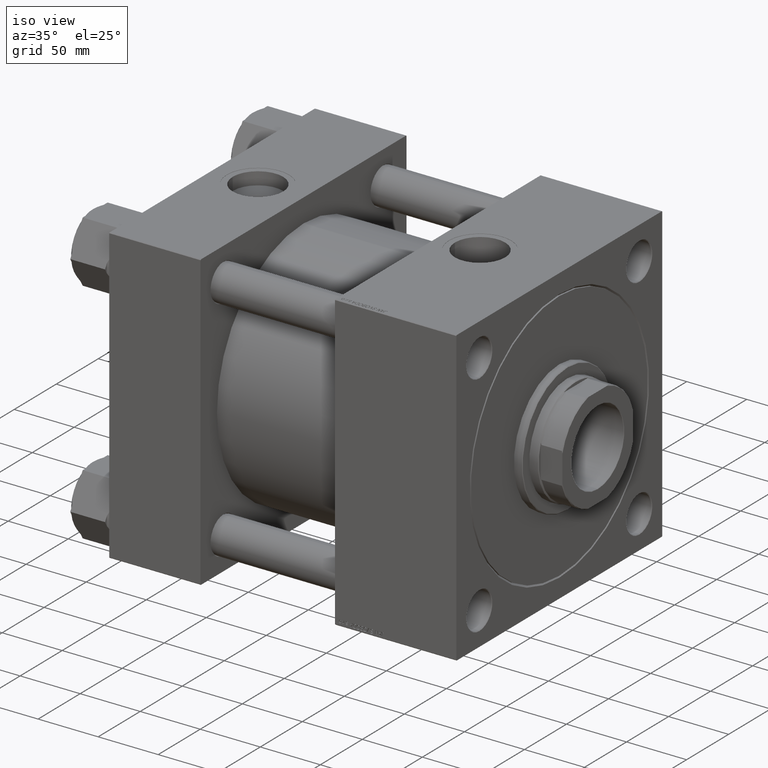
[diagram: clean part render]
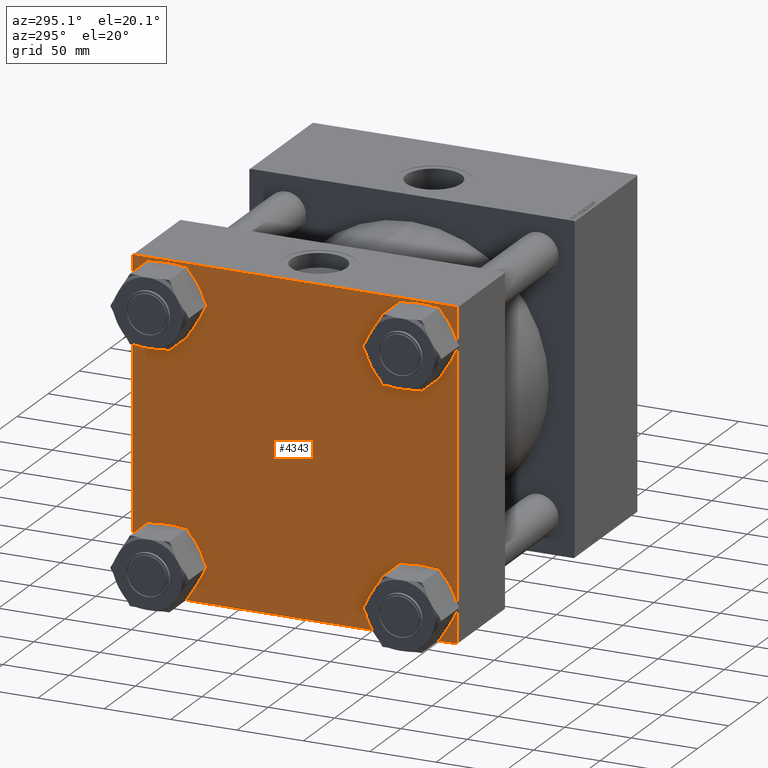
[diagram: tour spotlight — one face highlighted and labeled with its STEP entity id]
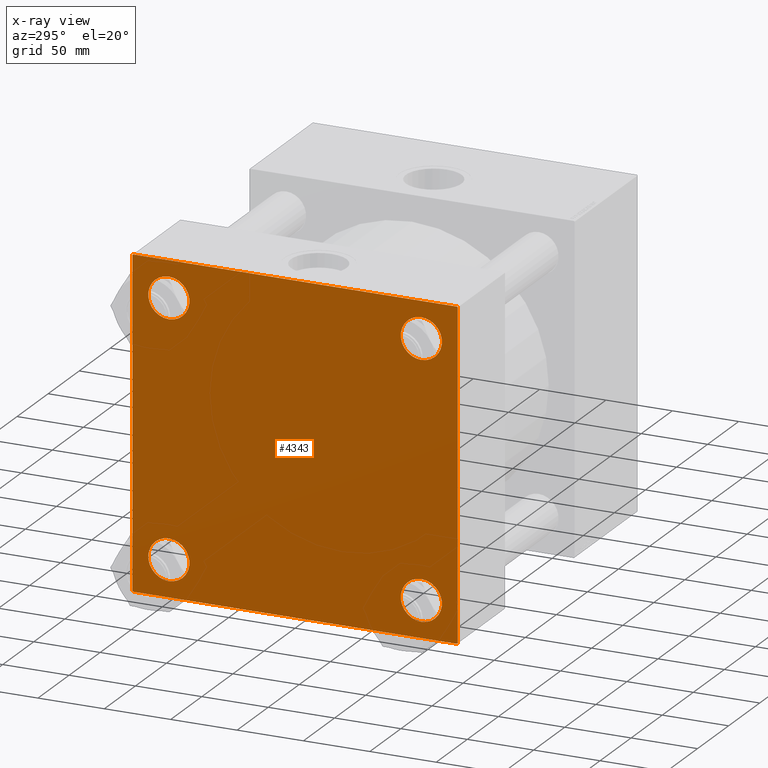
[diagram: x-ray of the same camera — body ghosted, this tour face saturated]
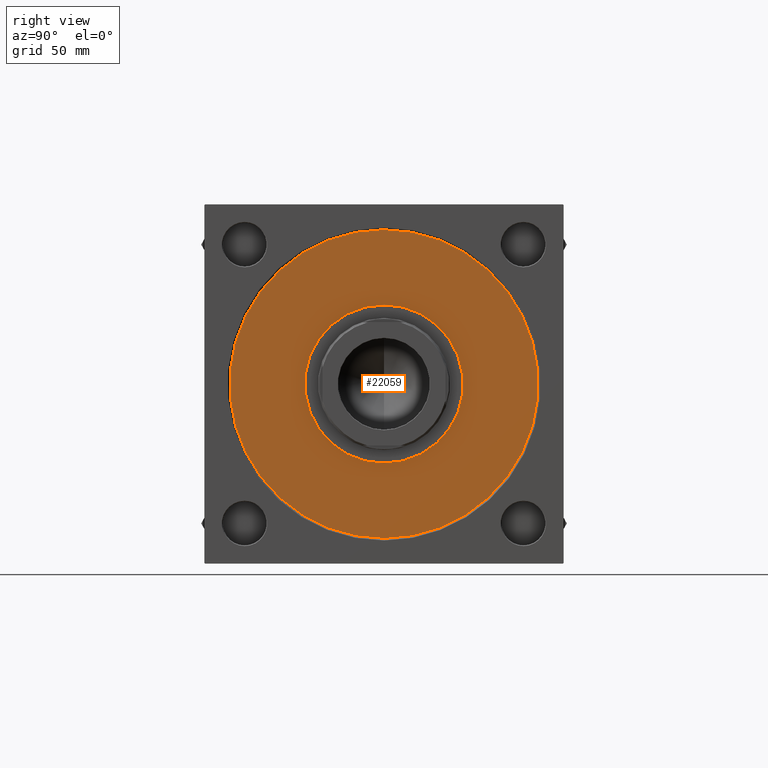
[diagram: tour spotlight — one face highlighted and labeled with its STEP entity id]
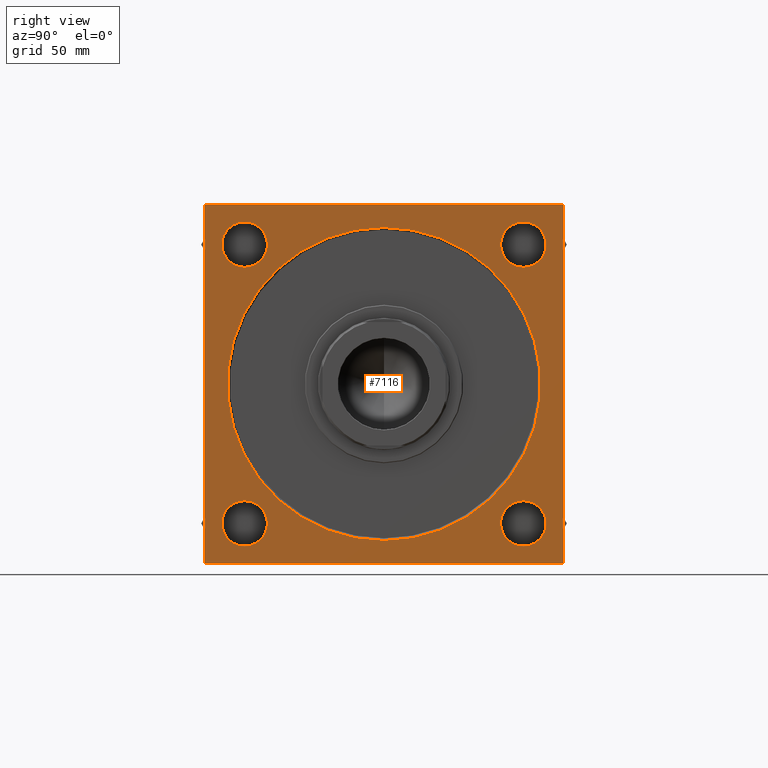
[diagram: tour spotlight — one face highlighted and labeled with its STEP entity id]
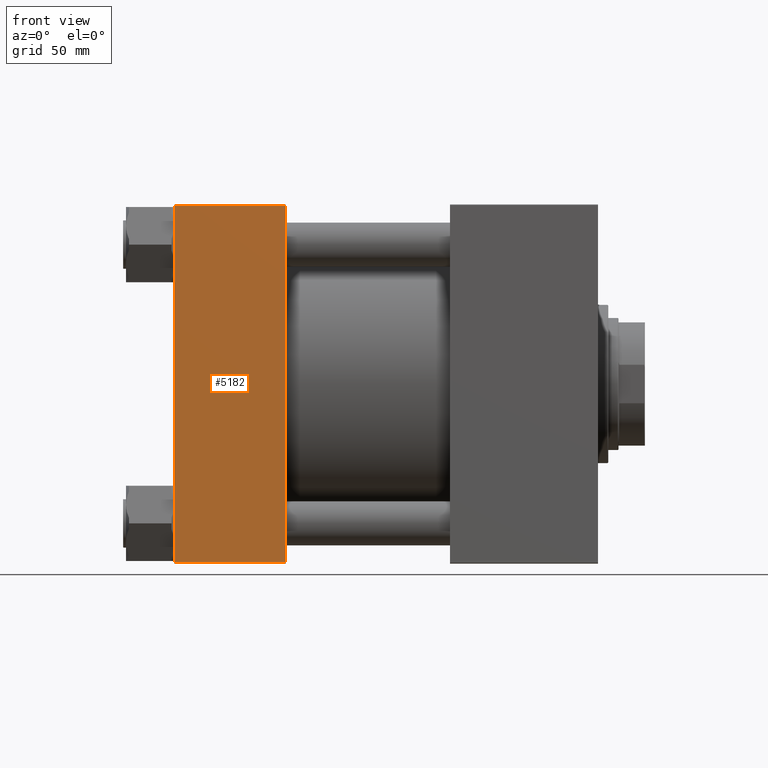
[diagram: tour spotlight — one face highlighted and labeled with its STEP entity id]
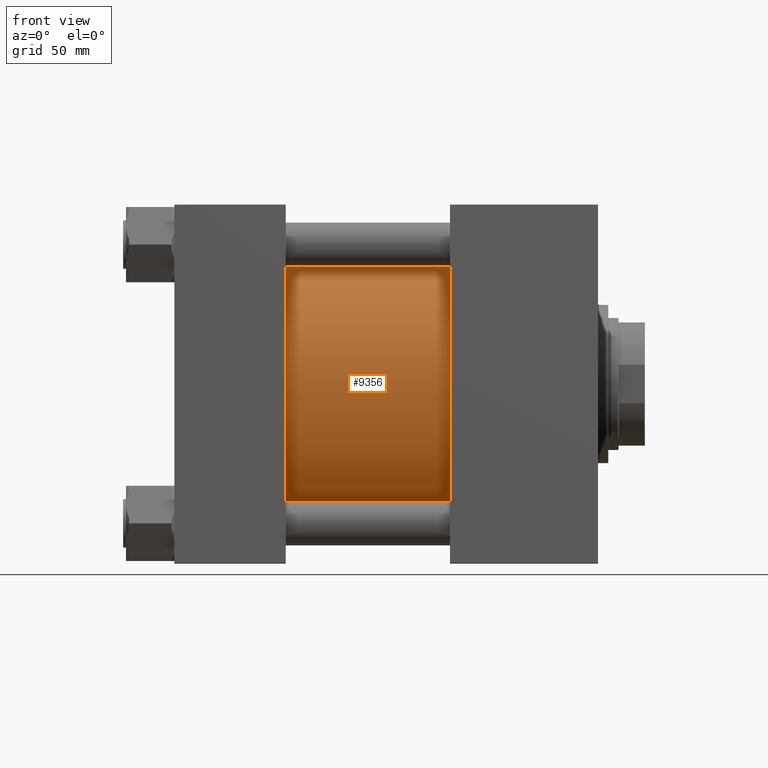
[diagram: tour spotlight — one face highlighted and labeled with its STEP entity id]
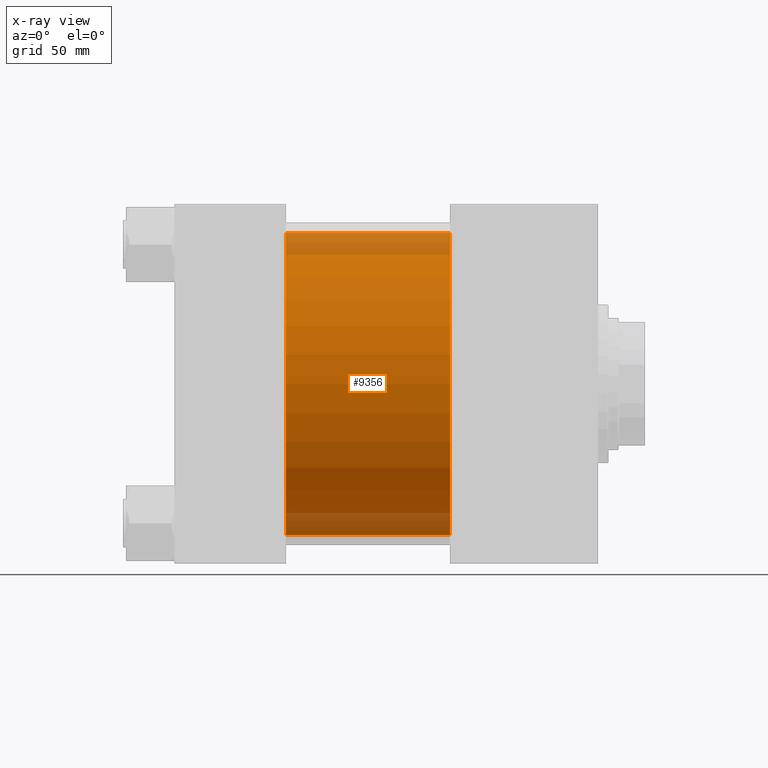
[diagram: x-ray of the same camera — body ghosted, this tour face saturated]
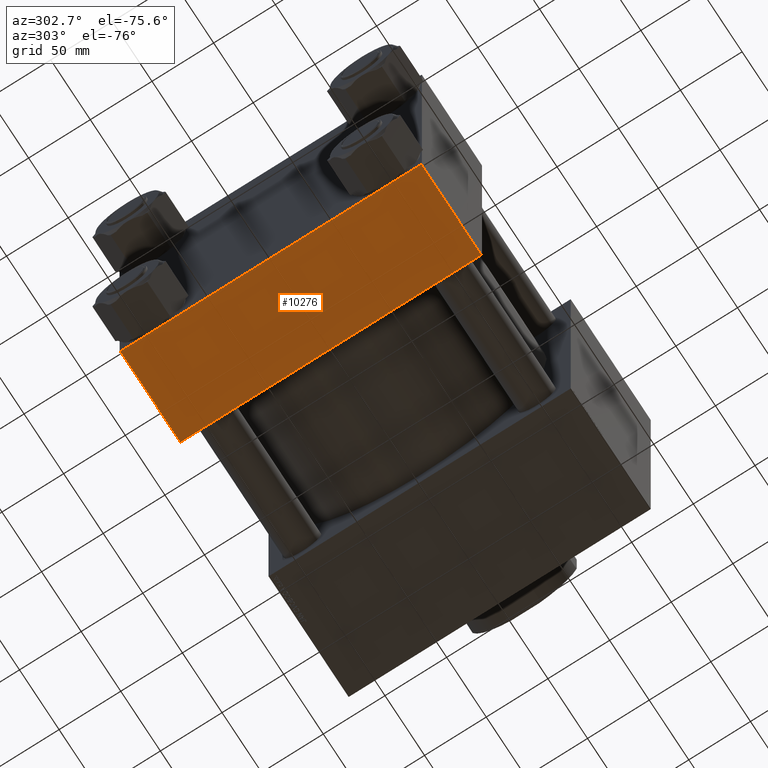
[diagram: tour spotlight — one face highlighted and labeled with its STEP entity id]
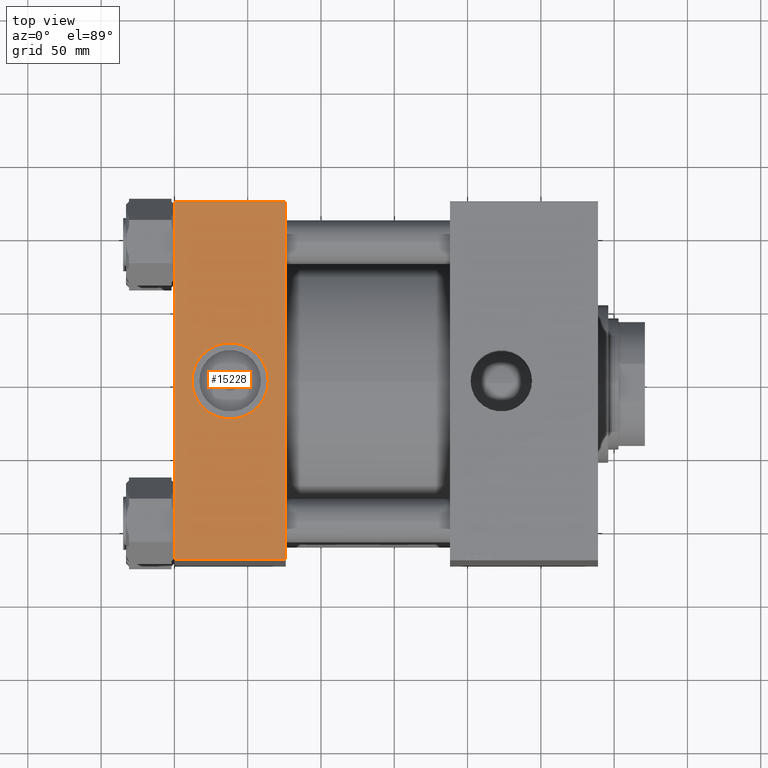
[diagram: tour spotlight — one face highlighted and labeled with its STEP entity id]
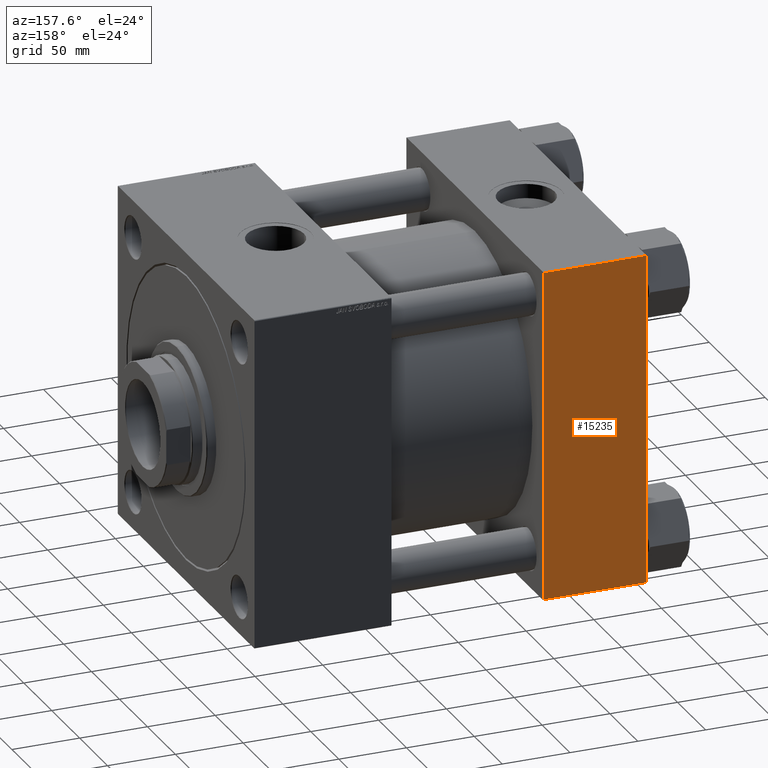
[diagram: tour spotlight — one face highlighted and labeled with its STEP entity id]
A machine part: a face-by-face anatomy tour. The part has 1196 B-rep faces; the first image is the clean iso view, then the 8 largest visible faces are spotlighted one at a time (largest first), each with its STEP entity span.

Face 1 — auxiliary view, entity #4343. An x-ray twin of the same camera follows (body ghosted, this face saturated) — the face is partly hidden behind the body. In plain terms, the highlighted planar face has unit normal (-1, 0, 0).
Definition (entity closure, byte-faithful):
#325 = VECTOR ( 'NONE', #20779, 1000.000000000000114 ) ;
#514 = DIRECTION ( 'NONE',  ( 1.000000000000000000, -0.000000000000000000, 0.000000000000000000 ) ) ;
#1582 = CIRCLE ( 'NONE', #17135, 15.50000000000001421 ) ;
#1644 = ORIENTED_EDGE ( 'NONE', *, *, #6718, .T. ) ;
#1882 = ORIENTED_EDGE ( 'NONE', *, *, #4992, .T. ) ;
#2014 = VECTOR ( 'NONE', #24680, 1000.000000000000000 ) ;
#2081 = AXIS2_PLACEMENT_3D ( 'NONE', #26482, #45982, #26997 ) ;
#2634 = DIRECTION ( 'NONE',  ( 0.000000000000000000, 0.000000000000000000, 1.000000000000000000 ) ) ;
#3004 = CARTESIAN_POINT ( 'NONE',  ( 0.000000000000000000, 121.9999999999999574, -122.4999999999999716 ) ) ;
#3505 = DIRECTION ( 'NONE',  ( 0.000000000000000000, 0.000000000000000000, 1.000000000000000000 ) ) ;
#3643 = CARTESIAN_POINT ( 'NONE',  ( 0.000000000000000000, -122.5000000000000000, 121.9999999999999858 ) ) ;
#3682 = VERTEX_POINT ( 'NONE', #14718 ) ;
#3717 = DIRECTION ( 'NONE',  ( 0.000000000000000000, 0.000000000000000000, 1.000000000000000000 ) ) ;
#4071 = VERTEX_POINT ( 'NONE', #7970 ) ;
#4132 = DIRECTION ( 'NONE',  ( -0.000000000000000000, -0.7071067811865081598, -0.7071067811865867636 ) ) ;
#4343 = ADVANCED_FACE ( 'NONE', ( #12018, #23807, #50499, #19972, #16142 ), #47405, .T. ) ;
#4718 = VERTEX_POINT ( 'NONE', #49041 ) ;
#4992 = EDGE_CURVE ( 'NONE', #50035, #4071, #40420, .T. ) ;
#5612 = EDGE_CURVE ( 'NONE', #11541, #40158, #50744, .T. ) ;
#6604 = VERTEX_POINT ( 'NONE', #27207 ) ;
#6718 = EDGE_CURVE ( 'NONE', #11473, #26241, #8986, .T. ) ;
#6823 = AXIS2_PLACEMENT_3D ( 'NONE', #20686, #13764, #48627 ) ;
#6956 = CARTESIAN_POINT ( 'NONE',  ( 0.000000000000000000, 95.09999999999999432, 110.5999999999999943 ) ) ;
#7216 = EDGE_CURVE ( 'NONE', #11541, #46745, #13153, .T. ) ;
#7886 = ORIENTED_EDGE ( 'NONE', *, *, #47049, .T. ) ;
#7970 = CARTESIAN_POINT ( 'NONE',  ( 0.000000000000000000, 95.09999999999999432, 79.59999999999996589 ) ) ;
#8193 = EDGE_LOOP ( 'NONE', ( #25125, #35672 ) ) ;
#8444 = DIRECTION ( 'NONE',  ( 0.000000000000000000, 0.000000000000000000, 1.000000000000000000 ) ) ;
#8504 = CIRCLE ( 'NONE', #17498, 15.50000000000001421 ) ;
#8986 = LINE ( 'NONE', #20539, #325 ) ;
#9953 = LINE ( 'NONE', #10202, #18712 ) ;
#10134 = CIRCLE ( 'NONE', #36340, 15.50000000000001421 ) ;
#10202 = CARTESIAN_POINT ( 'NONE',  ( 0.000000000000000000, -122.2499999999999574, -122.2499999999999574 ) ) ;
#10488 = CARTESIAN_POINT ( 'NONE',  ( 0.000000000000000000, 95.09999999999999432, -95.09999999999998010 ) ) ;
#10686 = DIRECTION ( 'NONE',  ( 0.000000000000000000, -1.000000000000000000, -1.699320956058913233E-16 ) ) ;
#11473 = VERTEX_POINT ( 'NONE', #29551 ) ;
#11481 = CARTESIAN_POINT ( 'NONE',  ( 0.000000000000000000, -95.09999999999996589, -110.6000000000000227 ) ) ;
#11523 = EDGE_CURVE ( 'NONE', #6604, #3682, #26663, .T. ) ;
#11541 = VERTEX_POINT ( 'NONE', #3643 ) ;
#12018 = FACE_BOUND ( 'NONE', #16253, .T. ) ;
#12351 = ORIENTED_EDGE ( 'NONE', *, *, #31103, .T. ) ;
#12552 = AXIS2_PLACEMENT_3D ( 'NONE', #16391, #32010, #23050 ) ;
#12772 = VERTEX_POINT ( 'NONE', #15664 ) ;
#12785 = CARTESIAN_POINT ( 'NONE',  ( 0.000000000000000000, -121.9999999999999858, 122.4999999999999858 ) ) ;
#13008 = AXIS2_PLACEMENT_3D ( 'NONE', #34987, #27293, #3717 ) ;
#13153 = LINE ( 'NONE', #20836, #2014 ) ;
#13724 = EDGE_CURVE ( 'NONE', #12772, #39217, #35639, .T. ) ;
#13764 = DIRECTION ( 'NONE',  ( 1.000000000000000000, -0.000000000000000000, 0.000000000000000000 ) ) ;
#14049 = CARTESIAN_POINT ( 'NONE',  ( 0.000000000000000000, 122.5000000000000142, 122.5000000000000284 ) ) ;
#14359 = DIRECTION ( 'NONE',  ( 0.000000000000000000, 0.000000000000000000, 1.000000000000000000 ) ) ;
#14718 = CARTESIAN_POINT ( 'NONE',  ( 0.000000000000000000, -95.09999999999996589, 110.6000000000000227 ) ) ;
#15335 = DIRECTION ( 'NONE',  ( 0.000000000000000000, -1.000000000000000000, -1.132880637372608740E-16 ) ) ;
#15492 = CARTESIAN_POINT ( 'NONE',  ( 0.000000000000000000, -121.9999999999999289, -122.5000000000000000 ) ) ;
#15664 = CARTESIAN_POINT ( 'NONE',  ( 0.000000000000000000, 95.09999999999999432, -79.59999999999996589 ) ) ;
#16142 = FACE_OUTER_BOUND ( 'NONE', #33712, .T. ) ;
#16188 = LINE ( 'NONE', #39235, #23477 ) ;
#16253 = EDGE_LOOP ( 'NONE', ( #21487, #46942 ) ) ;
#16391 = CARTESIAN_POINT ( 'NONE',  ( 0.000000000000000000, 0.000000000000000000, 0.000000000000000000 ) ) ;
#16669 = EDGE_CURVE ( 'NONE', #16913, #25498, #16188, .T. ) ;
#16913 = VERTEX_POINT ( 'NONE', #45343 ) ;
#17135 = AXIS2_PLACEMENT_3D ( 'NONE', #31862, #39030, #32105 ) ;
#17498 = AXIS2_PLACEMENT_3D ( 'NONE', #10488, #34076, #14359 ) ;
#18079 = ORIENTED_EDGE ( 'NONE', *, *, #21527, .T. ) ;
#18712 = VECTOR ( 'NONE', #45591, 1000.000000000000114 ) ;
#18756 = CARTESIAN_POINT ( 'NONE',  ( 0.000000000000000000, 95.09999999999999432, -110.5999999999999943 ) ) ;
#19209 = AXIS2_PLACEMENT_3D ( 'NONE', #25452, #29042, #2634 ) ;
#19972 = FACE_BOUND ( 'NONE', #39400, .T. ) ;
#20400 = EDGE_CURVE ( 'NONE', #25498, #49776, #34032, .T. ) ;
#20539 = CARTESIAN_POINT ( 'NONE',  ( 0.000000000000000000, 122.2500000000000000, 122.2500000000000000 ) ) ;
#20686 = CARTESIAN_POINT ( 'NONE',  ( 0.000000000000000000, 95.09999999999999432, 95.09999999999998010 ) ) ;
#20779 = DIRECTION ( 'NONE',  ( 0.000000000000000000, 0.7071067811865474617, -0.7071067811865474617 ) ) ;
#20836 = CARTESIAN_POINT ( 'NONE',  ( 0.000000000000000000, -122.5000000000000000, 122.4999999999999858 ) ) ;
#21487 = ORIENTED_EDGE ( 'NONE', *, *, #47953, .T. ) ;
#21527 = EDGE_CURVE ( 'NONE', #41780, #4718, #41663, .T. ) ;
#22733 = DIRECTION ( 'NONE',  ( 1.000000000000000000, -0.000000000000000000, 0.000000000000000000 ) ) ;
#23050 = DIRECTION ( 'NONE',  ( -0.000000000000000000, 0.000000000000000000, 1.000000000000000000 ) ) ;
#23457 = EDGE_CURVE ( 'NONE', #26241, #16913, #39652, .T. ) ;
#23477 = VECTOR ( 'NONE', #4132, 1000.000000000000000 ) ;
#23807 = FACE_BOUND ( 'NONE', #45903, .T. ) ;
#23959 = EDGE_CURVE ( 'NONE', #4071, #50035, #35189, .T. ) ;
#24170 = ORIENTED_EDGE ( 'NONE', *, *, #20400, .T. ) ;
#24208 = CARTESIAN_POINT ( 'NONE',  ( 0.000000000000000000, -122.5000000000000000, -121.9999999999999289 ) ) ;
#24454 = ORIENTED_EDGE ( 'NONE', *, *, #5612, .T. ) ;
#24680 = DIRECTION ( 'NONE',  ( 0.000000000000000000, 0.000000000000000000, -1.000000000000000000 ) ) ;
#25125 = ORIENTED_EDGE ( 'NONE', *, *, #13724, .T. ) ;
#25391 = ORIENTED_EDGE ( 'NONE', *, *, #16669, .T. ) ;
#25452 = CARTESIAN_POINT ( 'NONE',  ( 0.000000000000000000, -95.09999999999996589, 95.10000000000000853 ) ) ;
#25498 = VERTEX_POINT ( 'NONE', #3004 ) ;
#25513 = EDGE_CURVE ( 'NONE', #11473, #40158, #29909, .T. ) ;
#26241 = VERTEX_POINT ( 'NONE', #34914 ) ;
#26482 = CARTESIAN_POINT ( 'NONE',  ( 0.000000000000000000, 95.09999999999999432, -95.09999999999998010 ) ) ;
#26663 = CIRCLE ( 'NONE', #19209, 15.50000000000001421 ) ;
#26985 = AXIS2_PLACEMENT_3D ( 'NONE', #47435, #514, #8444 ) ;
#26997 = DIRECTION ( 'NONE',  ( 0.000000000000000000, 0.000000000000000000, 1.000000000000000000 ) ) ;
#27207 = CARTESIAN_POINT ( 'NONE',  ( 0.000000000000000000, -95.09999999999996589, 79.59999999999999432 ) ) ;
#27293 = DIRECTION ( 'NONE',  ( 1.000000000000000000, -0.000000000000000000, 0.000000000000000000 ) ) ;
#29042 = DIRECTION ( 'NONE',  ( 1.000000000000000000, -0.000000000000000000, 0.000000000000000000 ) ) ;
#29321 = VECTOR ( 'NONE', #15335, 1000.000000000000000 ) ;
#29551 = CARTESIAN_POINT ( 'NONE',  ( 0.000000000000000000, 121.9999999999999574, 122.5000000000000284 ) ) ;
#29909 = LINE ( 'NONE', #14049, #36756 ) ;
#30849 = EDGE_CURVE ( 'NONE', #39217, #12772, #8504, .T. ) ;
#31103 = EDGE_CURVE ( 'NONE', #4718, #41780, #10134, .T. ) ;
#31862 = CARTESIAN_POINT ( 'NONE',  ( 0.000000000000000000, -95.09999999999996589, 95.10000000000000853 ) ) ;
#32010 = DIRECTION ( 'NONE',  ( -1.000000000000000000, 0.000000000000000000, -0.000000000000000000 ) ) ;
#32105 = DIRECTION ( 'NONE',  ( 0.000000000000000000, 0.000000000000000000, 1.000000000000000000 ) ) ;
#33712 = EDGE_LOOP ( 'NONE', ( #38267, #25391, #24170, #7886, #36233, #24454, #35934, #1644 ) ) ;
#34032 = LINE ( 'NONE', #34791, #29321 ) ;
#34076 = DIRECTION ( 'NONE',  ( 1.000000000000000000, -0.000000000000000000, 0.000000000000000000 ) ) ;
#34791 = CARTESIAN_POINT ( 'NONE',  ( 0.000000000000000000, 122.5000000000000142, -122.4999999999999716 ) ) ;
#34914 = CARTESIAN_POINT ( 'NONE',  ( 0.000000000000000000, 122.5000000000000142, 121.9999999999999716 ) ) ;
#34987 = CARTESIAN_POINT ( 'NONE',  ( 0.000000000000000000, -95.09999999999996589, -95.10000000000000853 ) ) ;
#35189 = CIRCLE ( 'NONE', #26985, 15.50000000000001421 ) ;
#35639 = CIRCLE ( 'NONE', #2081, 15.50000000000001421 ) ;
#35672 = ORIENTED_EDGE ( 'NONE', *, *, #30849, .T. ) ;
#35934 = ORIENTED_EDGE ( 'NONE', *, *, #25513, .F. ) ;
#36061 = CARTESIAN_POINT ( 'NONE',  ( 0.000000000000000000, 122.5000000000000142, 122.5000000000000284 ) ) ;
#36233 = ORIENTED_EDGE ( 'NONE', *, *, #7216, .F. ) ;
#36340 = AXIS2_PLACEMENT_3D ( 'NONE', #46065, #22733, #3505 ) ;
#36756 = VECTOR ( 'NONE', #10686, 1000.000000000000000 ) ;
#38267 = ORIENTED_EDGE ( 'NONE', *, *, #23457, .T. ) ;
#39030 = DIRECTION ( 'NONE',  ( 1.000000000000000000, -0.000000000000000000, 0.000000000000000000 ) ) ;
#39217 = VERTEX_POINT ( 'NONE', #18756 ) ;
#39235 = CARTESIAN_POINT ( 'NONE',  ( 0.000000000000000000, 122.2500000000067217, -122.2499999999931646 ) ) ;
#39400 = EDGE_LOOP ( 'NONE', ( #1882, #47303 ) ) ;
#39652 = LINE ( 'NONE', #36061, #40059 ) ;
#40059 = VECTOR ( 'NONE', #47607, 1000.000000000000000 ) ;
#40158 = VERTEX_POINT ( 'NONE', #12785 ) ;
#40420 = CIRCLE ( 'NONE', #6823, 15.50000000000001421 ) ;
#41663 = CIRCLE ( 'NONE', #13008, 15.50000000000001421 ) ;
#41780 = VERTEX_POINT ( 'NONE', #11481 ) ;
#45343 = CARTESIAN_POINT ( 'NONE',  ( 0.000000000000000000, 122.5000000000000142, -121.9999999999998579 ) ) ;
#45591 = DIRECTION ( 'NONE',  ( 0.000000000000000000, -0.7071067811865474617, 0.7071067811865474617 ) ) ;
#45903 = EDGE_LOOP ( 'NONE', ( #12351, #18079 ) ) ;
#45982 = DIRECTION ( 'NONE',  ( 1.000000000000000000, -0.000000000000000000, 0.000000000000000000 ) ) ;
#46065 = CARTESIAN_POINT ( 'NONE',  ( 0.000000000000000000, -95.09999999999996589, -95.10000000000000853 ) ) ;
#46745 = VERTEX_POINT ( 'NONE', #24208 ) ;
#46882 = CARTESIAN_POINT ( 'NONE',  ( -0.000000000000000000, -122.2499999999982947, 122.2500000000016911 ) ) ;
#46942 = ORIENTED_EDGE ( 'NONE', *, *, #11523, .T. ) ;
#47049 = EDGE_CURVE ( 'NONE', #49776, #46745, #9953, .T. ) ;
#47303 = ORIENTED_EDGE ( 'NONE', *, *, #23959, .T. ) ;
#47393 = DIRECTION ( 'NONE',  ( -0.000000000000000000, 0.7071067811865574537, 0.7071067811865376918 ) ) ;
#47405 = PLANE ( 'NONE',  #12552 ) ;
#47435 = CARTESIAN_POINT ( 'NONE',  ( 0.000000000000000000, 95.09999999999999432, 95.09999999999998010 ) ) ;
#47607 = DIRECTION ( 'NONE',  ( 0.000000000000000000, 0.000000000000000000, -1.000000000000000000 ) ) ;
#47953 = EDGE_CURVE ( 'NONE', #3682, #6604, #1582, .T. ) ;
#48627 = DIRECTION ( 'NONE',  ( 0.000000000000000000, 0.000000000000000000, 1.000000000000000000 ) ) ;
#49041 = CARTESIAN_POINT ( 'NONE',  ( 0.000000000000000000, -95.09999999999996589, -79.59999999999999432 ) ) ;
#49776 = VERTEX_POINT ( 'NONE', #15492 ) ;
#50035 = VERTEX_POINT ( 'NONE', #6956 ) ;
#50260 = VECTOR ( 'NONE', #47393, 999.9999999999998863 ) ;
#50499 = FACE_BOUND ( 'NONE', #8193, .T. ) ;
#50744 = LINE ( 'NONE', #46882, #50260 ) ;

Face 2 — right view, entity #22059. In plain terms, the highlighted planar face has unit normal (1, 0, 0).
Definition (entity closure, byte-faithful):
#1554 = PLANE ( 'NONE',  #44918 ) ;
#4116 = CIRCLE ( 'NONE', #46677, 54.00000000000000000 ) ;
#4321 = DIRECTION ( 'NONE',  ( 0.000000000000000000, 0.000000000000000000, 1.000000000000000000 ) ) ;
#5901 = CARTESIAN_POINT ( 'NONE',  ( 0.000000000000000000, 0.000000000000000000, 28.69999999999999929 ) ) ;
#6275 = DIRECTION ( 'NONE',  ( 1.000000000000000000, 0.000000000000000000, 0.000000000000000000 ) ) ;
#9888 = VERTEX_POINT ( 'NONE', #29992 ) ;
#10165 = AXIS2_PLACEMENT_3D ( 'NONE', #45243, #25752, #6275 ) ;
#10828 = VERTEX_POINT ( 'NONE', #38122 ) ;
#11669 = EDGE_CURVE ( 'NONE', #13480, #42903, #45398, .T. ) ;
#13480 = VERTEX_POINT ( 'NONE', #17170 ) ;
#15099 = CARTESIAN_POINT ( 'NONE',  ( 0.000000000000000000, 0.000000000000000000, 28.69999999999999929 ) ) ;
#15244 = CIRCLE ( 'NONE', #44685, 54.00000000000000000 ) ;
#15400 = EDGE_LOOP ( 'NONE', ( #18266, #25393 ) ) ;
#15931 = AXIS2_PLACEMENT_3D ( 'NONE', #40719, #33014, #36876 ) ;
#16335 = DIRECTION ( 'NONE',  ( 0.000000000000000000, 0.000000000000000000, 1.000000000000000000 ) ) ;
#17170 = CARTESIAN_POINT ( 'NONE',  ( 105.2499999999999858, 1.288940756102589012E-14, 28.69999999999999929 ) ) ;
#17200 = FACE_BOUND ( 'NONE', #15400, .T. ) ;
#18266 = ORIENTED_EDGE ( 'NONE', *, *, #36018, .F. ) ;
#21719 = ORIENTED_EDGE ( 'NONE', *, *, #11669, .T. ) ;
#22059 = ADVANCED_FACE ( 'NONE', ( #17200, #39772 ), #1554, .T. ) ;
#24254 = CARTESIAN_POINT ( 'NONE',  ( 0.000000000000000000, 0.000000000000000000, 28.69999999999999929 ) ) ;
#24533 = EDGE_LOOP ( 'NONE', ( #44067, #21719 ) ) ;
#25393 = ORIENTED_EDGE ( 'NONE', *, *, #50657, .F. ) ;
#25714 = CIRCLE ( 'NONE', #10165, 105.2499999999999858 ) ;
#25752 = DIRECTION ( 'NONE',  ( 0.000000000000000000, 0.000000000000000000, 1.000000000000000000 ) ) ;
#29992 = CARTESIAN_POINT ( 'NONE',  ( 54.00000000000000000, 6.613092715395707467E-15, 28.69999999999999929 ) ) ;
#31627 = EDGE_CURVE ( 'NONE', #42903, #13480, #25714, .T. ) ;
#33014 = DIRECTION ( 'NONE',  ( 0.000000000000000000, 0.000000000000000000, 1.000000000000000000 ) ) ;
#36018 = EDGE_CURVE ( 'NONE', #10828, #9888, #15244, .T. ) ;
#36051 = DIRECTION ( 'NONE',  ( 1.000000000000000000, 0.000000000000000000, 0.000000000000000000 ) ) ;
#36876 = DIRECTION ( 'NONE',  ( 1.000000000000000000, 0.000000000000000000, 0.000000000000000000 ) ) ;
#38122 = CARTESIAN_POINT ( 'NONE',  ( -54.00000000000000000, 0.000000000000000000, 28.69999999999999929 ) ) ;
#39772 = FACE_OUTER_BOUND ( 'NONE', #24533, .T. ) ;
#40719 = CARTESIAN_POINT ( 'NONE',  ( 0.000000000000000000, 0.000000000000000000, 28.69999999999999929 ) ) ;
#42903 = VERTEX_POINT ( 'NONE', #44451 ) ;
#44067 = ORIENTED_EDGE ( 'NONE', *, *, #31627, .T. ) ;
#44451 = CARTESIAN_POINT ( 'NONE',  ( -105.2499999999999858, 0.000000000000000000, 28.69999999999999929 ) ) ;
#44685 = AXIS2_PLACEMENT_3D ( 'NONE', #15099, #4321, #50493 ) ;
#44864 = DIRECTION ( 'NONE',  ( 1.000000000000000000, 0.000000000000000000, -0.000000000000000000 ) ) ;
#44918 = AXIS2_PLACEMENT_3D ( 'NONE', #5901, #49234, #44864 ) ;
#45243 = CARTESIAN_POINT ( 'NONE',  ( 0.000000000000000000, 0.000000000000000000, 28.69999999999999929 ) ) ;
#45398 = CIRCLE ( 'NONE', #15931, 105.2499999999999858 ) ;
#46677 = AXIS2_PLACEMENT_3D ( 'NONE', #24254, #16335, #36051 ) ;
#49234 = DIRECTION ( 'NONE',  ( 0.000000000000000000, 0.000000000000000000, 1.000000000000000000 ) ) ;
#50493 = DIRECTION ( 'NONE',  ( 1.000000000000000000, 0.000000000000000000, 0.000000000000000000 ) ) ;
#50657 = EDGE_CURVE ( 'NONE', #9888, #10828, #4116, .T. ) ;

Face 3 — right view, entity #7116. In plain terms, the highlighted planar face has unit normal (-1, 0, 0).
Definition (entity closure, byte-faithful):
#15 = VERTEX_POINT ( 'NONE', #42870 ) ;
#41 = CARTESIAN_POINT ( 'NONE',  ( 289.0000000000000568, -122.0000000000000000, -122.5000000000000853 ) ) ;
#101 = CARTESIAN_POINT ( 'NONE',  ( 289.0000000000000568, 0.000000000000000000, 0.000000000000000000 ) ) ;
#353 = FACE_BOUND ( 'NONE', #10604, .T. ) ;
#989 = CARTESIAN_POINT ( 'NONE',  ( 289.0000000000000568, -95.09999999999996589, 95.10000000000000853 ) ) ;
#1070 = ORIENTED_EDGE ( 'NONE', *, *, #2535, .T. ) ;
#1166 = EDGE_CURVE ( 'NONE', #40762, #33197, #1400, .T. ) ;
#1274 = AXIS2_PLACEMENT_3D ( 'NONE', #23074, #50525, #15399 ) ;
#1400 = LINE ( 'NONE', #44972, #2815 ) ;
#1573 = EDGE_CURVE ( 'NONE', #38195, #15043, #28405, .T. ) ;
#2535 = EDGE_CURVE ( 'NONE', #32836, #3523, #45218, .T. ) ;
#2769 = EDGE_CURVE ( 'NONE', #15, #27814, #4327, .T. ) ;
#2815 = VECTOR ( 'NONE', #12939, 1000.000000000000000 ) ;
#2817 = AXIS2_PLACEMENT_3D ( 'NONE', #5653, #5402, #29225 ) ;
#2953 = DIRECTION ( 'NONE',  ( 0.000000000000000000, 0.000000000000000000, 1.000000000000000000 ) ) ;
#3523 = VERTEX_POINT ( 'NONE', #16306 ) ;
#3745 = ORIENTED_EDGE ( 'NONE', *, *, #25902, .F. ) ;
#3950 = FACE_BOUND ( 'NONE', #7848, .T. ) ;
#3980 = EDGE_CURVE ( 'NONE', #23201, #43734, #28060, .T. ) ;
#4327 = CIRCLE ( 'NONE', #48525, 15.50000000000012434 ) ;
#4464 = AXIS2_PLACEMENT_3D ( 'NONE', #34391, #13711, #33432 ) ;
#4687 = EDGE_CURVE ( 'NONE', #49001, #38195, #5196, .T. ) ;
#4958 = DIRECTION ( 'NONE',  ( -1.000000000000000000, 0.000000000000000000, 0.000000000000000000 ) ) ;
#5196 = LINE ( 'NONE', #24928, #41195 ) ;
#5343 = CARTESIAN_POINT ( 'NONE',  ( 289.0000000000000568, 0.000000000000000000, -106.7500000000000000 ) ) ;
#5402 = DIRECTION ( 'NONE',  ( -1.000000000000000000, 0.000000000000000000, 0.000000000000000000 ) ) ;
#5653 = CARTESIAN_POINT ( 'NONE',  ( 289.0000000000000568, -95.09999999999998010, -95.09999999999998010 ) ) ;
#6574 = EDGE_CURVE ( 'NONE', #33197, #16769, #50562, .T. ) ;
#6702 = EDGE_CURVE ( 'NONE', #45954, #15132, #20000, .T. ) ;
#6724 = AXIS2_PLACEMENT_3D ( 'NONE', #9642, #44501, #40925 ) ;
#7110 = VERTEX_POINT ( 'NONE', #7780 ) ;
#7116 = ADVANCED_FACE ( 'NONE', ( #353, #3950, #23684, #43424, #11886, #16745 ), #35219, .F. ) ;
#7701 = EDGE_CURVE ( 'NONE', #15132, #45954, #30637, .T. ) ;
#7780 = CARTESIAN_POINT ( 'NONE',  ( 289.0000000000000568, 95.09999999999999432, 110.6000000000001080 ) ) ;
#7828 = DIRECTION ( 'NONE',  ( -0.000000000000000000, -0.7071067811865474617, -0.7071067811865474617 ) ) ;
#7848 = EDGE_LOOP ( 'NONE', ( #22491, #1070 ) ) ;
#8578 = CIRCLE ( 'NONE', #47908, 106.7500000000000000 ) ;
#8675 = CARTESIAN_POINT ( 'NONE',  ( 289.0000000000000568, -95.09999999999998010, -79.59999999999985221 ) ) ;
#9157 = CARTESIAN_POINT ( 'NONE',  ( 289.0000000000000568, 122.4999999999999716, 122.5000000000000142 ) ) ;
#9591 = CARTESIAN_POINT ( 'NONE',  ( 289.0000000000000568, -95.09999999999998010, -110.6000000000001080 ) ) ;
#9642 = CARTESIAN_POINT ( 'NONE',  ( 289.0000000000000568, -95.09999999999996589, 95.10000000000000853 ) ) ;
#10006 = EDGE_CURVE ( 'NONE', #40518, #7110, #48748, .T. ) ;
#10237 = LINE ( 'NONE', #21285, #27486 ) ;
#10545 = VECTOR ( 'NONE', #13994, 1000.000000000000000 ) ;
#10604 = EDGE_LOOP ( 'NONE', ( #27972, #30563 ) ) ;
#11165 = CARTESIAN_POINT ( 'NONE',  ( 289.0000000000000568, -122.5000000000000000, 122.0000000000000426 ) ) ;
#11437 = LINE ( 'NONE', #15560, #15059 ) ;
#11886 = FACE_BOUND ( 'NONE', #23701, .T. ) ;
#12745 = EDGE_CURVE ( 'NONE', #43734, #23201, #8578, .T. ) ;
#12939 = DIRECTION ( 'NONE',  ( 0.000000000000000000, -5.664403186863042467E-17, -1.000000000000000000 ) ) ;
#13028 = DIRECTION ( 'NONE',  ( -1.000000000000000000, 0.000000000000000000, 0.000000000000000000 ) ) ;
#13711 = DIRECTION ( 'NONE',  ( -1.000000000000000000, 0.000000000000000000, 0.000000000000000000 ) ) ;
#13826 = AXIS2_PLACEMENT_3D ( 'NONE', #989, #13028, #25064 ) ;
#13994 = DIRECTION ( 'NONE',  ( 0.000000000000000000, 0.000000000000000000, -1.000000000000000000 ) ) ;
#14954 = EDGE_CURVE ( 'NONE', #19485, #16769, #10237, .T. ) ;
#15043 = VERTEX_POINT ( 'NONE', #38683 ) ;
#15059 = VECTOR ( 'NONE', #39118, 999.9999999999998863 ) ;
#15132 = VERTEX_POINT ( 'NONE', #8675 ) ;
#15310 = EDGE_LOOP ( 'NONE', ( #30117, #20899, #21103, #19791, #3745, #47957, #48397, #31798 ) ) ;
#15399 = DIRECTION ( 'NONE',  ( 0.000000000000000000, 0.000000000000000000, 1.000000000000000000 ) ) ;
#15560 = CARTESIAN_POINT ( 'NONE',  ( 289.0000000000000568, 122.4999999999999716, -121.9999999999999858 ) ) ;
#15792 = DIRECTION ( 'NONE',  ( 0.000000000000000000, 0.000000000000000000, 1.000000000000000000 ) ) ;
#16005 = ORIENTED_EDGE ( 'NONE', *, *, #16405, .T. ) ;
#16211 = ORIENTED_EDGE ( 'NONE', *, *, #3980, .T. ) ;
#16306 = CARTESIAN_POINT ( 'NONE',  ( 289.0000000000000568, -95.09999999999996589, 79.59999999999988063 ) ) ;
#16405 = EDGE_CURVE ( 'NONE', #27814, #15, #50520, .T. ) ;
#16745 = FACE_OUTER_BOUND ( 'NONE', #15310, .T. ) ;
#16769 = VERTEX_POINT ( 'NONE', #37149 ) ;
#17110 = CIRCLE ( 'NONE', #13826, 15.50000000000012434 ) ;
#17154 = AXIS2_PLACEMENT_3D ( 'NONE', #22424, #33959, #2953 ) ;
#19004 = CARTESIAN_POINT ( 'NONE',  ( 289.0000000000000568, 0.000000000000000000, 0.000000000000000000 ) ) ;
#19081 = CARTESIAN_POINT ( 'NONE',  ( 289.0000000000000568, -122.5000000000000000, 122.0000000000000426 ) ) ;
#19437 = VECTOR ( 'NONE', #7828, 1000.000000000000114 ) ;
#19485 = VERTEX_POINT ( 'NONE', #23002 ) ;
#19791 = ORIENTED_EDGE ( 'NONE', *, *, #30390, .T. ) ;
#20000 = CIRCLE ( 'NONE', #2817, 15.50000000000012434 ) ;
#20899 = ORIENTED_EDGE ( 'NONE', *, *, #6574, .T. ) ;
#21037 = AXIS2_PLACEMENT_3D ( 'NONE', #42175, #26536, #45785 ) ;
#21103 = ORIENTED_EDGE ( 'NONE', *, *, #14954, .F. ) ;
#21285 = CARTESIAN_POINT ( 'NONE',  ( 289.0000000000000568, 122.4999999999999716, -122.5000000000000000 ) ) ;
#21665 = CARTESIAN_POINT ( 'NONE',  ( 289.0000000000000568, 95.09999999999999432, 79.59999999999985221 ) ) ;
#22255 = EDGE_CURVE ( 'NONE', #3523, #32836, #17110, .T. ) ;
#22424 = CARTESIAN_POINT ( 'NONE',  ( 289.0000000000000568, 95.09999999999999432, 95.09999999999998010 ) ) ;
#22491 = ORIENTED_EDGE ( 'NONE', *, *, #22255, .T. ) ;
#23002 = CARTESIAN_POINT ( 'NONE',  ( 289.0000000000000568, 121.9999999999999716, -122.5000000000000000 ) ) ;
#23074 = CARTESIAN_POINT ( 'NONE',  ( 289.0000000000000568, 95.09999999999999432, 95.09999999999998010 ) ) ;
#23108 = DIRECTION ( 'NONE',  ( 0.000000000000000000, 0.7071067811865671127, -0.7071067811865279218 ) ) ;
#23201 = VERTEX_POINT ( 'NONE', #5343 ) ;
#23684 = FACE_BOUND ( 'NONE', #29376, .T. ) ;
#23701 = EDGE_LOOP ( 'NONE', ( #16211, #31029 ) ) ;
#24880 = VECTOR ( 'NONE', #23108, 1000.000000000000000 ) ;
#24928 = CARTESIAN_POINT ( 'NONE',  ( 289.0000000000000568, 121.9999999999999716, 122.5000000000000142 ) ) ;
#25064 = DIRECTION ( 'NONE',  ( 0.000000000000000000, 0.000000000000000000, 1.000000000000000000 ) ) ;
#25297 = CIRCLE ( 'NONE', #17154, 15.50000000000012434 ) ;
#25902 = EDGE_CURVE ( 'NONE', #49001, #40634, #40898, .T. ) ;
#25927 = DIRECTION ( 'NONE',  ( -1.000000000000000000, 0.000000000000000000, 0.000000000000000000 ) ) ;
#26536 = DIRECTION ( 'NONE',  ( -1.000000000000000000, 0.000000000000000000, 0.000000000000000000 ) ) ;
#26660 = DIRECTION ( 'NONE',  ( 0.000000000000000000, 0.000000000000000000, 1.000000000000000000 ) ) ;
#26856 = EDGE_CURVE ( 'NONE', #7110, #40518, #25297, .T. ) ;
#27486 = VECTOR ( 'NONE', #48977, 1000.000000000000000 ) ;
#27814 = VERTEX_POINT ( 'NONE', #32656 ) ;
#27972 = ORIENTED_EDGE ( 'NONE', *, *, #10006, .T. ) ;
#28035 = DIRECTION ( 'NONE',  ( 0.000000000000000000, 0.000000000000000000, 1.000000000000000000 ) ) ;
#28060 = CIRCLE ( 'NONE', #41987, 106.7500000000000000 ) ;
#28405 = LINE ( 'NONE', #9157, #32630 ) ;
#29014 = CARTESIAN_POINT ( 'NONE',  ( 289.0000000000000568, 122.4999999999999716, 122.0000000000000142 ) ) ;
#29225 = DIRECTION ( 'NONE',  ( 0.000000000000000000, 0.000000000000000000, 1.000000000000000000 ) ) ;
#29376 = EDGE_LOOP ( 'NONE', ( #32057, #43063 ) ) ;
#30117 = ORIENTED_EDGE ( 'NONE', *, *, #1166, .T. ) ;
#30390 = EDGE_CURVE ( 'NONE', #19485, #40634, #11437, .T. ) ;
#30503 = DIRECTION ( 'NONE',  ( -1.000000000000000000, 0.000000000000000000, 0.000000000000000000 ) ) ;
#30563 = ORIENTED_EDGE ( 'NONE', *, *, #26856, .T. ) ;
#30637 = CIRCLE ( 'NONE', #4464, 15.50000000000012434 ) ;
#31029 = ORIENTED_EDGE ( 'NONE', *, *, #12745, .T. ) ;
#31402 = DIRECTION ( 'NONE',  ( -1.000000000000000000, 0.000000000000000000, 0.000000000000000000 ) ) ;
#31798 = ORIENTED_EDGE ( 'NONE', *, *, #42761, .T. ) ;
#32057 = ORIENTED_EDGE ( 'NONE', *, *, #6702, .T. ) ;
#32630 = VECTOR ( 'NONE', #44289, 1000.000000000000000 ) ;
#32656 = CARTESIAN_POINT ( 'NONE',  ( 289.0000000000000568, 95.09999999999999432, -79.59999999999985221 ) ) ;
#32836 = VERTEX_POINT ( 'NONE', #36900 ) ;
#33197 = VERTEX_POINT ( 'NONE', #48891 ) ;
#33432 = DIRECTION ( 'NONE',  ( 0.000000000000000000, 0.000000000000000000, 1.000000000000000000 ) ) ;
#33959 = DIRECTION ( 'NONE',  ( -1.000000000000000000, 0.000000000000000000, 0.000000000000000000 ) ) ;
#34391 = CARTESIAN_POINT ( 'NONE',  ( 289.0000000000000568, -95.09999999999998010, -95.09999999999998010 ) ) ;
#34628 = DIRECTION ( 'NONE',  ( 0.000000000000000000, 0.000000000000000000, 1.000000000000000000 ) ) ;
#35219 = PLANE ( 'NONE',  #43759 ) ;
#36900 = CARTESIAN_POINT ( 'NONE',  ( 289.0000000000000568, -95.09999999999996589, 110.6000000000001222 ) ) ;
#37149 = CARTESIAN_POINT ( 'NONE',  ( 289.0000000000000568, -122.0000000000000000, -122.5000000000000853 ) ) ;
#38195 = VERTEX_POINT ( 'NONE', #39073 ) ;
#38683 = CARTESIAN_POINT ( 'NONE',  ( 289.0000000000000568, -122.0000000000000568, 122.4999999999999858 ) ) ;
#38941 = ORIENTED_EDGE ( 'NONE', *, *, #2769, .T. ) ;
#39073 = CARTESIAN_POINT ( 'NONE',  ( 289.0000000000000568, 121.9999999999999716, 122.5000000000000142 ) ) ;
#39093 = CARTESIAN_POINT ( 'NONE',  ( 289.0000000000000568, 95.09999999999999432, -95.09999999999998010 ) ) ;
#39118 = DIRECTION ( 'NONE',  ( -0.000000000000000000, 0.7071067811865376918, 0.7071067811865574537 ) ) ;
#39479 = CARTESIAN_POINT ( 'NONE',  ( 289.0000000000000568, 1.307310458089799442E-14, 106.7500000000000000 ) ) ;
#40327 = EDGE_LOOP ( 'NONE', ( #38941, #16005 ) ) ;
#40518 = VERTEX_POINT ( 'NONE', #21665 ) ;
#40570 = DIRECTION ( 'NONE',  ( 0.000000000000000000, -0.7071067811865474617, 0.7071067811865474617 ) ) ;
#40634 = VERTEX_POINT ( 'NONE', #44741 ) ;
#40762 = VERTEX_POINT ( 'NONE', #19081 ) ;
#40898 = LINE ( 'NONE', #49115, #10545 ) ;
#40925 = DIRECTION ( 'NONE',  ( 0.000000000000000000, 0.000000000000000000, 1.000000000000000000 ) ) ;
#41195 = VECTOR ( 'NONE', #40570, 1000.000000000000114 ) ;
#41987 = AXIS2_PLACEMENT_3D ( 'NONE', #19004, #25927, #34628 ) ;
#42175 = CARTESIAN_POINT ( 'NONE',  ( 289.0000000000000568, 95.09999999999999432, -95.09999999999998010 ) ) ;
#42558 = CARTESIAN_POINT ( 'NONE',  ( 289.0000000000000568, 0.000000000000000000, 0.000000000000000000 ) ) ;
#42691 = LINE ( 'NONE', #11165, #19437 ) ;
#42761 = EDGE_CURVE ( 'NONE', #15043, #40762, #42691, .T. ) ;
#42870 = CARTESIAN_POINT ( 'NONE',  ( 289.0000000000000568, 95.09999999999999432, -110.6000000000001080 ) ) ;
#43063 = ORIENTED_EDGE ( 'NONE', *, *, #7701, .T. ) ;
#43424 = FACE_BOUND ( 'NONE', #40327, .T. ) ;
#43734 = VERTEX_POINT ( 'NONE', #39479 ) ;
#43759 = AXIS2_PLACEMENT_3D ( 'NONE', #101, #4958, #28035 ) ;
#44289 = DIRECTION ( 'NONE',  ( 0.000000000000000000, -1.000000000000000000, -1.132880637372608986E-16 ) ) ;
#44501 = DIRECTION ( 'NONE',  ( -1.000000000000000000, 0.000000000000000000, 0.000000000000000000 ) ) ;
#44741 = CARTESIAN_POINT ( 'NONE',  ( 289.0000000000000568, 122.4999999999999716, -121.9999999999999858 ) ) ;
#44972 = CARTESIAN_POINT ( 'NONE',  ( 289.0000000000000568, -122.5000000000000000, 122.4999999999999858 ) ) ;
#45218 = CIRCLE ( 'NONE', #6724, 15.50000000000012434 ) ;
#45785 = DIRECTION ( 'NONE',  ( 0.000000000000000000, 0.000000000000000000, 1.000000000000000000 ) ) ;
#45954 = VERTEX_POINT ( 'NONE', #9591 ) ;
#47908 = AXIS2_PLACEMENT_3D ( 'NONE', #42558, #30503, #26660 ) ;
#47957 = ORIENTED_EDGE ( 'NONE', *, *, #4687, .T. ) ;
#48397 = ORIENTED_EDGE ( 'NONE', *, *, #1573, .T. ) ;
#48525 = AXIS2_PLACEMENT_3D ( 'NONE', #39093, #31402, #15792 ) ;
#48748 = CIRCLE ( 'NONE', #1274, 15.50000000000012434 ) ;
#48891 = CARTESIAN_POINT ( 'NONE',  ( 289.0000000000000568, -122.5000000000000142, -122.0000000000000995 ) ) ;
#48977 = DIRECTION ( 'NONE',  ( 0.000000000000000000, -1.000000000000000000, -3.398641912117826466E-16 ) ) ;
#49001 = VERTEX_POINT ( 'NONE', #29014 ) ;
#49115 = CARTESIAN_POINT ( 'NONE',  ( 289.0000000000000568, 122.4999999999999716, 122.5000000000000142 ) ) ;
#50520 = CIRCLE ( 'NONE', #21037, 15.50000000000012434 ) ;
#50525 = DIRECTION ( 'NONE',  ( -1.000000000000000000, 0.000000000000000000, 0.000000000000000000 ) ) ;
#50562 = LINE ( 'NONE', #41, #24880 ) ;

Face 4 — front view, entity #5182. In plain terms, the highlighted planar face has unit normal (0, 1, 0).
Definition (entity closure, byte-faithful):
#2014 = VECTOR ( 'NONE', #24680, 1000.000000000000000 ) ;
#3643 = CARTESIAN_POINT ( 'NONE',  ( 0.000000000000000000, -122.5000000000000000, 121.9999999999999858 ) ) ;
#3731 = FACE_OUTER_BOUND ( 'NONE', #41110, .T. ) ;
#4244 = DIRECTION ( 'NONE',  ( 0.000000000000000000, -0.000000000000000000, 1.000000000000000000 ) ) ;
#4608 = ORIENTED_EDGE ( 'NONE', *, *, #48718, .F. ) ;
#4725 = CARTESIAN_POINT ( 'NONE',  ( 76.00000000000000000, -122.5000000000000000, 121.9999999999999858 ) ) ;
#5182 = ADVANCED_FACE ( 'NONE', ( #3731 ), #39356, .F. ) ;
#5692 = CARTESIAN_POINT ( 'NONE',  ( 76.00000000000000000, -122.5000000000000000, 122.4999999999999858 ) ) ;
#7216 = EDGE_CURVE ( 'NONE', #11541, #46745, #13153, .T. ) ;
#11541 = VERTEX_POINT ( 'NONE', #3643 ) ;
#13153 = LINE ( 'NONE', #20836, #2014 ) ;
#13636 = DIRECTION ( 'NONE',  ( 0.000000000000000000, 0.000000000000000000, -1.000000000000000000 ) ) ;
#20114 = LINE ( 'NONE', #4725, #48256 ) ;
#20836 = CARTESIAN_POINT ( 'NONE',  ( 0.000000000000000000, -122.5000000000000000, 122.4999999999999858 ) ) ;
#23714 = EDGE_CURVE ( 'NONE', #42557, #11541, #20114, .T. ) ;
#23950 = DIRECTION ( 'NONE',  ( -1.000000000000000000, 0.000000000000000000, 0.000000000000000000 ) ) ;
#24208 = CARTESIAN_POINT ( 'NONE',  ( 0.000000000000000000, -122.5000000000000000, -121.9999999999999289 ) ) ;
#24680 = DIRECTION ( 'NONE',  ( 0.000000000000000000, 0.000000000000000000, -1.000000000000000000 ) ) ;
#24739 = VERTEX_POINT ( 'NONE', #35340 ) ;
#26653 = ORIENTED_EDGE ( 'NONE', *, *, #23714, .T. ) ;
#27983 = ORIENTED_EDGE ( 'NONE', *, *, #36496, .T. ) ;
#31596 = VECTOR ( 'NONE', #35666, 1000.000000000000000 ) ;
#31876 = ORIENTED_EDGE ( 'NONE', *, *, #7216, .T. ) ;
#35340 = CARTESIAN_POINT ( 'NONE',  ( 76.00000000000000000, -122.5000000000000000, -121.9999999999999289 ) ) ;
#35408 = LINE ( 'NONE', #38737, #31596 ) ;
#35666 = DIRECTION ( 'NONE',  ( 1.000000000000000000, 0.000000000000000000, 0.000000000000000000 ) ) ;
#36496 = EDGE_CURVE ( 'NONE', #46745, #24739, #35408, .T. ) ;
#38737 = CARTESIAN_POINT ( 'NONE',  ( 76.00000000000000000, -122.5000000000000000, -121.9999999999999289 ) ) ;
#39100 = CARTESIAN_POINT ( 'NONE',  ( 76.00000000000000000, -122.5000000000000000, 122.4999999999999858 ) ) ;
#39356 = PLANE ( 'NONE',  #45329 ) ;
#41055 = LINE ( 'NONE', #5692, #41713 ) ;
#41110 = EDGE_LOOP ( 'NONE', ( #31876, #27983, #4608, #26653 ) ) ;
#41713 = VECTOR ( 'NONE', #13636, 1000.000000000000000 ) ;
#42557 = VERTEX_POINT ( 'NONE', #45862 ) ;
#43702 = DIRECTION ( 'NONE',  ( -0.000000000000000000, 1.000000000000000000, 0.000000000000000000 ) ) ;
#45329 = AXIS2_PLACEMENT_3D ( 'NONE', #39100, #43702, #4244 ) ;
#45862 = CARTESIAN_POINT ( 'NONE',  ( 76.00000000000000000, -122.5000000000000000, 121.9999999999999858 ) ) ;
#46745 = VERTEX_POINT ( 'NONE', #24208 ) ;
#48256 = VECTOR ( 'NONE', #23950, 1000.000000000000000 ) ;
#48718 = EDGE_CURVE ( 'NONE', #42557, #24739, #41055, .T. ) ;

Face 5 — front view, entity #9356. An x-ray twin of the same camera follows (body ghosted, this face saturated) — the face is partly hidden behind the body. In plain terms, the highlighted cylindrical surface (partial cylindrical patch) has radius 103 mm, axis along (-1, -0, -0).
Definition (entity closure, byte-faithful):
#256 = DIRECTION ( 'NONE',  ( 0.000000000000000000, 0.000000000000000000, 1.000000000000000000 ) ) ;
#770 = CARTESIAN_POINT ( 'NONE',  ( 76.00000000000000000, -2.602085213965210642E-15, 0.000000000000000000 ) ) ;
#7982 = VECTOR ( 'NONE', #30720, 1000.000000000000000 ) ;
#9356 = ADVANCED_FACE ( 'NONE', ( #41151 ), #17838, .T. ) ;
#10228 = AXIS2_PLACEMENT_3D ( 'NONE', #37808, #25760, #21925 ) ;
#11090 = DIRECTION ( 'NONE',  ( 0.000000000000000000, 0.000000000000000000, -1.000000000000000000 ) ) ;
#12955 = EDGE_CURVE ( 'NONE', #47539, #40580, #36467, .T. ) ;
#14122 = ORIENTED_EDGE ( 'NONE', *, *, #43168, .F. ) ;
#15468 = CARTESIAN_POINT ( 'NONE',  ( 188.0000000000000000, -2.602085213965210642E-15, 0.000000000000000000 ) ) ;
#17601 = VECTOR ( 'NONE', #42900, 1000.000000000000000 ) ;
#17735 = CARTESIAN_POINT ( 'NONE',  ( 188.0000000000000000, 1.001177681725252697E-14, -103.0000000000000000 ) ) ;
#17838 = CYLINDRICAL_SURFACE ( 'NONE', #10228, 103.0000000000000000 ) ;
#19593 = CARTESIAN_POINT ( 'NONE',  ( 188.0000000000000000, -2.602085213965210642E-15, 103.0000000000000000 ) ) ;
#21925 = DIRECTION ( 'NONE',  ( 0.000000000000000000, 0.000000000000000000, 1.000000000000000000 ) ) ;
#22829 = CIRCLE ( 'NONE', #44938, 103.0000000000000000 ) ;
#22895 = DIRECTION ( 'NONE',  ( 1.000000000000000000, 0.000000000000000000, 0.000000000000000000 ) ) ;
#24831 = DIRECTION ( 'NONE',  ( 1.000000000000000000, -0.000000000000000000, 0.000000000000000000 ) ) ;
#25760 = DIRECTION ( 'NONE',  ( -1.000000000000000000, -0.000000000000000000, -0.000000000000000000 ) ) ;
#26011 = CARTESIAN_POINT ( 'NONE',  ( 76.00000000000000000, 1.001177681725252697E-14, -103.0000000000000000 ) ) ;
#26792 = CARTESIAN_POINT ( 'NONE',  ( 76.00000000000000000, -2.602085213965210642E-15, 103.0000000000000000 ) ) ;
#29965 = ORIENTED_EDGE ( 'NONE', *, *, #37320, .T. ) ;
#30467 = LINE ( 'NONE', #34569, #7982 ) ;
#30716 = AXIS2_PLACEMENT_3D ( 'NONE', #770, #24831, #256 ) ;
#30720 = DIRECTION ( 'NONE',  ( -1.000000000000000000, -0.000000000000000000, -0.000000000000000000 ) ) ;
#34569 = CARTESIAN_POINT ( 'NONE',  ( 188.0000000000000000, 1.001177681725252697E-14, -103.0000000000000000 ) ) ;
#36467 = CIRCLE ( 'NONE', #30716, 103.0000000000000000 ) ;
#37320 = EDGE_CURVE ( 'NONE', #43997, #47539, #50117, .T. ) ;
#37808 = CARTESIAN_POINT ( 'NONE',  ( 188.0000000000000000, -2.602085213965210642E-15, 0.000000000000000000 ) ) ;
#40580 = VERTEX_POINT ( 'NONE', #26011 ) ;
#41151 = FACE_OUTER_BOUND ( 'NONE', #45372, .T. ) ;
#41848 = ORIENTED_EDGE ( 'NONE', *, *, #47886, .F. ) ;
#42199 = VERTEX_POINT ( 'NONE', #17735 ) ;
#42900 = DIRECTION ( 'NONE',  ( -1.000000000000000000, -0.000000000000000000, -0.000000000000000000 ) ) ;
#43168 = EDGE_CURVE ( 'NONE', #42199, #40580, #30467, .T. ) ;
#43997 = VERTEX_POINT ( 'NONE', #49700 ) ;
#44938 = AXIS2_PLACEMENT_3D ( 'NONE', #15468, #22895, #11090 ) ;
#45372 = EDGE_LOOP ( 'NONE', ( #14122, #41848, #29965, #46137 ) ) ;
#46137 = ORIENTED_EDGE ( 'NONE', *, *, #12955, .T. ) ;
#47539 = VERTEX_POINT ( 'NONE', #26792 ) ;
#47886 = EDGE_CURVE ( 'NONE', #43997, #42199, #22829, .T. ) ;
#49700 = CARTESIAN_POINT ( 'NONE',  ( 188.0000000000000000, -2.602085213965210642E-15, 103.0000000000000000 ) ) ;
#50117 = LINE ( 'NONE', #19593, #17601 ) ;

Face 6 — auxiliary view, entity #10276. In plain terms, the highlighted planar face has unit normal (0, 0, -1).
Definition (entity closure, byte-faithful):
#639 = EDGE_CURVE ( 'NONE', #10365, #49776, #2034, .T. ) ;
#2034 = LINE ( 'NONE', #33299, #24111 ) ;
#3004 = CARTESIAN_POINT ( 'NONE',  ( 0.000000000000000000, 121.9999999999999574, -122.4999999999999716 ) ) ;
#5602 = ORIENTED_EDGE ( 'NONE', *, *, #639, .T. ) ;
#7212 = CARTESIAN_POINT ( 'NONE',  ( 76.00000000000000000, 121.9999999999999574, -122.4999999999999716 ) ) ;
#7696 = CARTESIAN_POINT ( 'NONE',  ( 76.00000000000000000, 121.9999999999999574, -122.4999999999999716 ) ) ;
#10276 = ADVANCED_FACE ( 'NONE', ( #39083 ), #31391, .T. ) ;
#10365 = VERTEX_POINT ( 'NONE', #36175 ) ;
#11261 = CARTESIAN_POINT ( 'NONE',  ( 76.00000000000000000, 122.5000000000000142, -122.4999999999999716 ) ) ;
#12169 = CARTESIAN_POINT ( 'NONE',  ( 76.00000000000000000, 122.5000000000000142, -122.4999999999999716 ) ) ;
#15335 = DIRECTION ( 'NONE',  ( 0.000000000000000000, -1.000000000000000000, -1.132880637372608740E-16 ) ) ;
#15492 = CARTESIAN_POINT ( 'NONE',  ( 0.000000000000000000, -121.9999999999999289, -122.5000000000000000 ) ) ;
#15670 = ORIENTED_EDGE ( 'NONE', *, *, #25409, .T. ) ;
#15882 = EDGE_CURVE ( 'NONE', #25498, #49980, #45919, .T. ) ;
#16290 = VECTOR ( 'NONE', #23060, 1000.000000000000000 ) ;
#20400 = EDGE_CURVE ( 'NONE', #25498, #49776, #34032, .T. ) ;
#22729 = EDGE_LOOP ( 'NONE', ( #39352, #29861, #15670, #5602 ) ) ;
#23060 = DIRECTION ( 'NONE',  ( 0.000000000000000000, -1.000000000000000000, -1.132880637372608740E-16 ) ) ;
#24111 = VECTOR ( 'NONE', #33559, 1000.000000000000000 ) ;
#25409 = EDGE_CURVE ( 'NONE', #49980, #10365, #46652, .T. ) ;
#25498 = VERTEX_POINT ( 'NONE', #3004 ) ;
#27553 = DIRECTION ( 'NONE',  ( 0.000000000000000000, 1.132880637372608740E-16, -1.000000000000000000 ) ) ;
#29321 = VECTOR ( 'NONE', #15335, 1000.000000000000000 ) ;
#29861 = ORIENTED_EDGE ( 'NONE', *, *, #15882, .T. ) ;
#31391 = PLANE ( 'NONE',  #43029 ) ;
#33299 = CARTESIAN_POINT ( 'NONE',  ( 0.000000000000000000, -121.9999999999999289, -122.5000000000000000 ) ) ;
#33559 = DIRECTION ( 'NONE',  ( -1.000000000000000000, 0.000000000000000000, 0.000000000000000000 ) ) ;
#34032 = LINE ( 'NONE', #34791, #29321 ) ;
#34615 = DIRECTION ( 'NONE',  ( 1.000000000000000000, 0.000000000000000000, 0.000000000000000000 ) ) ;
#34791 = CARTESIAN_POINT ( 'NONE',  ( 0.000000000000000000, 122.5000000000000142, -122.4999999999999716 ) ) ;
#36175 = CARTESIAN_POINT ( 'NONE',  ( 76.00000000000000000, -121.9999999999999289, -122.5000000000000000 ) ) ;
#39083 = FACE_OUTER_BOUND ( 'NONE', #22729, .T. ) ;
#39352 = ORIENTED_EDGE ( 'NONE', *, *, #20400, .F. ) ;
#43029 = AXIS2_PLACEMENT_3D ( 'NONE', #12169, #27553, #50647 ) ;
#45919 = LINE ( 'NONE', #7696, #46361 ) ;
#46361 = VECTOR ( 'NONE', #34615, 1000.000000000000000 ) ;
#46652 = LINE ( 'NONE', #11261, #16290 ) ;
#49776 = VERTEX_POINT ( 'NONE', #15492 ) ;
#49980 = VERTEX_POINT ( 'NONE', #7212 ) ;
#50647 = DIRECTION ( 'NONE',  ( 0.000000000000000000, 1.000000000000000000, 1.132880637372608740E-16 ) ) ;

Face 7 — top view, entity #15228. In plain terms, the highlighted planar face has unit normal (0, 0, -1).
Definition (entity closure, byte-faithful):
#528 = AXIS2_PLACEMENT_3D ( 'NONE', #22570, #38466, #33846 ) ;
#825 = DIRECTION ( 'NONE',  ( 0.000000000000000000, -1.000000000000000000, -1.699320956058913233E-16 ) ) ;
#1483 = FACE_BOUND ( 'NONE', #33549, .T. ) ;
#2966 = CIRCLE ( 'NONE', #528, 26.00000000000000355 ) ;
#5327 = DIRECTION ( 'NONE',  ( 0.000000000000000000, 1.699320956058913233E-16, -1.000000000000000000 ) ) ;
#7198 = AXIS2_PLACEMENT_3D ( 'NONE', #47629, #32729, #17098 ) ;
#7571 = CARTESIAN_POINT ( 'NONE',  ( 11.99999999999998934, -1.936732350991537522E-14, 122.5000000000000000 ) ) ;
#10388 = EDGE_CURVE ( 'NONE', #40158, #24814, #36418, .T. ) ;
#10686 = DIRECTION ( 'NONE',  ( 0.000000000000000000, -1.000000000000000000, -1.699320956058913233E-16 ) ) ;
#11473 = VERTEX_POINT ( 'NONE', #29551 ) ;
#12785 = CARTESIAN_POINT ( 'NONE',  ( 0.000000000000000000, -121.9999999999999858, 122.4999999999999858 ) ) ;
#13347 = DIRECTION ( 'NONE',  ( 1.000000000000000000, 0.000000000000000000, 0.000000000000000000 ) ) ;
#13403 = ORIENTED_EDGE ( 'NONE', *, *, #10388, .T. ) ;
#14049 = CARTESIAN_POINT ( 'NONE',  ( 0.000000000000000000, 122.5000000000000142, 122.5000000000000284 ) ) ;
#14126 = ORIENTED_EDGE ( 'NONE', *, *, #25513, .T. ) ;
#15228 = ADVANCED_FACE ( 'NONE', ( #1483, #29905 ), #45561, .F. ) ;
#16708 = CARTESIAN_POINT ( 'NONE',  ( 76.00000000000000000, 122.5000000000000142, 122.5000000000000284 ) ) ;
#16714 = CARTESIAN_POINT ( 'NONE',  ( 0.000000000000000000, 121.9999999999999574, 122.5000000000000284 ) ) ;
#17098 = DIRECTION ( 'NONE',  ( 1.000000000000000000, 0.000000000000000000, 0.000000000000000000 ) ) ;
#17127 = DIRECTION ( 'NONE',  ( 0.000000000000000000, 1.000000000000000000, 1.699320956058913233E-16 ) ) ;
#20185 = VERTEX_POINT ( 'NONE', #35113 ) ;
#21157 = EDGE_CURVE ( 'NONE', #27450, #11473, #36693, .T. ) ;
#22570 = CARTESIAN_POINT ( 'NONE',  ( 38.00000000000000000, -2.255140518769849538E-14, 122.5000000000000000 ) ) ;
#22778 = VECTOR ( 'NONE', #32844, 1000.000000000000000 ) ;
#24093 = CARTESIAN_POINT ( 'NONE',  ( 76.00000000000000000, 121.9999999999999574, 122.5000000000000284 ) ) ;
#24814 = VERTEX_POINT ( 'NONE', #30985 ) ;
#25513 = EDGE_CURVE ( 'NONE', #11473, #40158, #29909, .T. ) ;
#26377 = EDGE_CURVE ( 'NONE', #27450, #24814, #27740, .T. ) ;
#27450 = VERTEX_POINT ( 'NONE', #24093 ) ;
#27740 = LINE ( 'NONE', #16708, #31052 ) ;
#29551 = CARTESIAN_POINT ( 'NONE',  ( 0.000000000000000000, 121.9999999999999574, 122.5000000000000284 ) ) ;
#29905 = FACE_OUTER_BOUND ( 'NONE', #36047, .T. ) ;
#29909 = LINE ( 'NONE', #14049, #36756 ) ;
#30985 = CARTESIAN_POINT ( 'NONE',  ( 76.00000000000000000, -121.9999999999999858, 122.4999999999999858 ) ) ;
#31052 = VECTOR ( 'NONE', #825, 1000.000000000000000 ) ;
#31897 = ORIENTED_EDGE ( 'NONE', *, *, #44964, .F. ) ;
#32729 = DIRECTION ( 'NONE',  ( 0.000000000000000000, 0.000000000000000000, 1.000000000000000000 ) ) ;
#32844 = DIRECTION ( 'NONE',  ( -1.000000000000000000, 0.000000000000000000, 0.000000000000000000 ) ) ;
#33549 = EDGE_LOOP ( 'NONE', ( #48029, #31897 ) ) ;
#33846 = DIRECTION ( 'NONE',  ( 1.000000000000000000, 0.000000000000000000, 0.000000000000000000 ) ) ;
#35113 = CARTESIAN_POINT ( 'NONE',  ( 64.00000000000000000, -2.255140518769849538E-14, 122.5000000000000000 ) ) ;
#36047 = EDGE_LOOP ( 'NONE', ( #14126, #13403, #47082, #40978 ) ) ;
#36418 = LINE ( 'NONE', #48472, #40573 ) ;
#36693 = LINE ( 'NONE', #16714, #22778 ) ;
#36756 = VECTOR ( 'NONE', #10686, 1000.000000000000000 ) ;
#38466 = DIRECTION ( 'NONE',  ( 0.000000000000000000, 0.000000000000000000, 1.000000000000000000 ) ) ;
#40158 = VERTEX_POINT ( 'NONE', #12785 ) ;
#40446 = CARTESIAN_POINT ( 'NONE',  ( 76.00000000000000000, 122.5000000000000142, 122.5000000000000284 ) ) ;
#40573 = VECTOR ( 'NONE', #13347, 1000.000000000000000 ) ;
#40978 = ORIENTED_EDGE ( 'NONE', *, *, #21157, .T. ) ;
#41302 = EDGE_CURVE ( 'NONE', #20185, #42857, #2966, .T. ) ;
#42857 = VERTEX_POINT ( 'NONE', #7571 ) ;
#44964 = EDGE_CURVE ( 'NONE', #42857, #20185, #45711, .T. ) ;
#45561 = PLANE ( 'NONE',  #48008 ) ;
#45711 = CIRCLE ( 'NONE', #7198, 26.00000000000000355 ) ;
#47082 = ORIENTED_EDGE ( 'NONE', *, *, #26377, .F. ) ;
#47629 = CARTESIAN_POINT ( 'NONE',  ( 38.00000000000000000, -2.255140518769849538E-14, 122.5000000000000000 ) ) ;
#48008 = AXIS2_PLACEMENT_3D ( 'NONE', #40446, #5327, #17127 ) ;
#48029 = ORIENTED_EDGE ( 'NONE', *, *, #41302, .F. ) ;
#48472 = CARTESIAN_POINT ( 'NONE',  ( 76.00000000000000000, -121.9999999999999858, 122.4999999999999858 ) ) ;

Face 8 — auxiliary view, entity #15235. In plain terms, the highlighted planar face has unit normal (0, 1, 0).
Definition (entity closure, byte-faithful):
#504 = LINE ( 'NONE', #46659, #3913 ) ;
#2740 = CARTESIAN_POINT ( 'NONE',  ( 76.00000000000000000, 122.5000000000000142, 122.5000000000000284 ) ) ;
#3913 = VECTOR ( 'NONE', #38947, 1000.000000000000000 ) ;
#4554 = LINE ( 'NONE', #35570, #24303 ) ;
#10625 = CARTESIAN_POINT ( 'NONE',  ( 76.00000000000000000, 122.5000000000000142, 121.9999999999999716 ) ) ;
#15235 = ADVANCED_FACE ( 'NONE', ( #32756 ), #49669, .T. ) ;
#16913 = VERTEX_POINT ( 'NONE', #45343 ) ;
#19160 = EDGE_CURVE ( 'NONE', #26241, #25886, #504, .T. ) ;
#19335 = VERTEX_POINT ( 'NONE', #37870 ) ;
#19400 = DIRECTION ( 'NONE',  ( -0.000000000000000000, 1.000000000000000000, 0.000000000000000000 ) ) ;
#23457 = EDGE_CURVE ( 'NONE', #26241, #16913, #39652, .T. ) ;
#23782 = DIRECTION ( 'NONE',  ( 0.000000000000000000, 0.000000000000000000, -1.000000000000000000 ) ) ;
#24303 = VECTOR ( 'NONE', #23782, 1000.000000000000000 ) ;
#24586 = ORIENTED_EDGE ( 'NONE', *, *, #41792, .T. ) ;
#25886 = VERTEX_POINT ( 'NONE', #10625 ) ;
#26241 = VERTEX_POINT ( 'NONE', #34914 ) ;
#26439 = EDGE_CURVE ( 'NONE', #19335, #16913, #41966, .T. ) ;
#30947 = ORIENTED_EDGE ( 'NONE', *, *, #19160, .T. ) ;
#32756 = FACE_OUTER_BOUND ( 'NONE', #39723, .T. ) ;
#33077 = DIRECTION ( 'NONE',  ( -1.000000000000000000, 0.000000000000000000, 0.000000000000000000 ) ) ;
#34914 = CARTESIAN_POINT ( 'NONE',  ( 0.000000000000000000, 122.5000000000000142, 121.9999999999999716 ) ) ;
#35570 = CARTESIAN_POINT ( 'NONE',  ( 76.00000000000000000, 122.5000000000000142, 122.5000000000000284 ) ) ;
#36061 = CARTESIAN_POINT ( 'NONE',  ( 0.000000000000000000, 122.5000000000000142, 122.5000000000000284 ) ) ;
#36684 = CARTESIAN_POINT ( 'NONE',  ( 76.00000000000000000, 122.5000000000000142, -121.9999999999998579 ) ) ;
#37870 = CARTESIAN_POINT ( 'NONE',  ( 76.00000000000000000, 122.5000000000000142, -121.9999999999998579 ) ) ;
#38947 = DIRECTION ( 'NONE',  ( 1.000000000000000000, 0.000000000000000000, 0.000000000000000000 ) ) ;
#39652 = LINE ( 'NONE', #36061, #40059 ) ;
#39723 = EDGE_LOOP ( 'NONE', ( #24586, #46535, #50533, #30947 ) ) ;
#39809 = AXIS2_PLACEMENT_3D ( 'NONE', #2740, #19400, #42463 ) ;
#40059 = VECTOR ( 'NONE', #47607, 1000.000000000000000 ) ;
#41792 = EDGE_CURVE ( 'NONE', #25886, #19335, #4554, .T. ) ;
#41966 = LINE ( 'NONE', #36684, #43321 ) ;
#42463 = DIRECTION ( 'NONE',  ( 0.000000000000000000, -0.000000000000000000, 1.000000000000000000 ) ) ;
#43321 = VECTOR ( 'NONE', #33077, 1000.000000000000000 ) ;
#45343 = CARTESIAN_POINT ( 'NONE',  ( 0.000000000000000000, 122.5000000000000142, -121.9999999999998579 ) ) ;
#46535 = ORIENTED_EDGE ( 'NONE', *, *, #26439, .T. ) ;
#46659 = CARTESIAN_POINT ( 'NONE',  ( 76.00000000000000000, 122.5000000000000142, 121.9999999999999716 ) ) ;
#47607 = DIRECTION ( 'NONE',  ( 0.000000000000000000, 0.000000000000000000, -1.000000000000000000 ) ) ;
#49669 = PLANE ( 'NONE',  #39809 ) ;
#50533 = ORIENTED_EDGE ( 'NONE', *, *, #23457, .F. ) ;